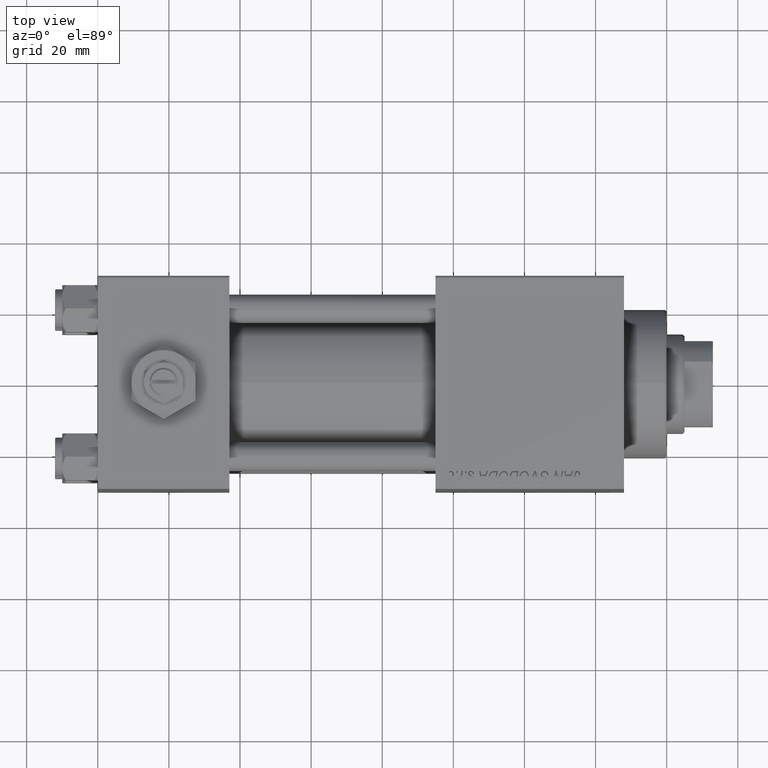
[diagram: clean part render]
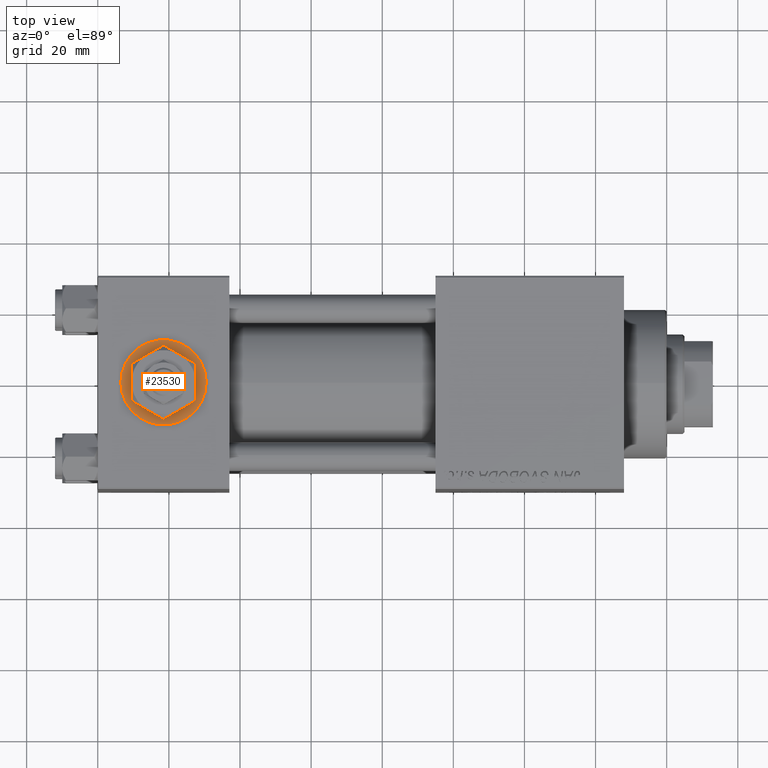
[diagram: same view with one face highlighted and labeled with its STEP entity id]
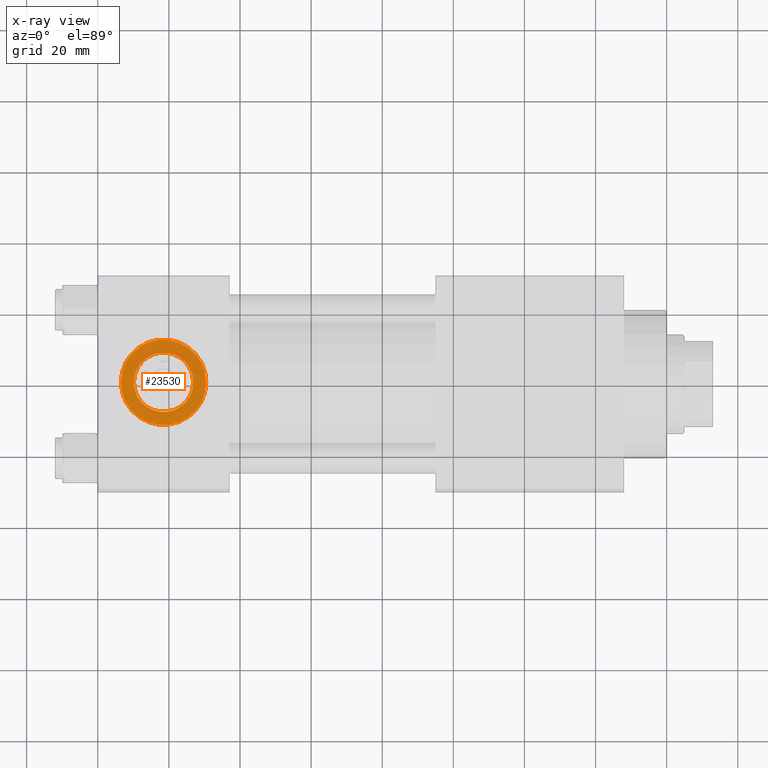
[diagram: x-ray of the same camera — body ghosted, the highlighted face saturated]
A machine part, top view. The second image highlights one B-rep face of the part: STEP entity #23530.
The next image is the same camera in x-ray: the body ghosted, the highlighted face saturated — about 0% of this face is hidden behind the body in this view.
In plain terms, the highlighted planar face has unit normal (0, 0, 1).
Its self-contained STEP definition (entity closure, byte-faithful):
#300 = AXIS2_PLACEMENT_3D ( 'NONE', #34553, #35057, #6423 ) ;
#1286 = AXIS2_PLACEMENT_3D ( 'NONE', #6867, #2130, #42346 ) ;
#2130 = DIRECTION ( 'NONE',  ( 0.000000000000000000, 0.000000000000000000, 1.000000000000000000 ) ) ;
#2662 = FACE_BOUND ( 'NONE', #21240, .T. ) ;
#2788 = VERTEX_POINT ( 'NONE', #22641 ) ;
#6423 = DIRECTION ( 'NONE',  ( 1.000000000000000000, 0.000000000000000000, 0.000000000000000000 ) ) ;
#6603 = PLANE ( 'NONE',  #1286 ) ;
#6867 = CARTESIAN_POINT ( 'NONE',  ( 18.50000000000000000, -3.469446951953614978E-15, 29.79999999999999716 ) ) ;
#8908 = CIRCLE ( 'NONE', #43321, 12.00000000000000000 ) ;
#9116 = ORIENTED_EDGE ( 'NONE', *, *, #24538, .T. ) ;
#11749 = DIRECTION ( 'NONE',  ( 0.000000000000000000, 0.000000000000000000, 1.000000000000000000 ) ) ;
#12215 = AXIS2_PLACEMENT_3D ( 'NONE', #28533, #11749, #15953 ) ;
#13311 = VERTEX_POINT ( 'NONE', #46097 ) ;
#14714 = DIRECTION ( 'NONE',  ( 1.000000000000000000, 0.000000000000000000, 0.000000000000000000 ) ) ;
#15953 = DIRECTION ( 'NONE',  ( 1.000000000000000000, 0.000000000000000000, 0.000000000000000000 ) ) ;
#18159 = EDGE_CURVE ( 'NONE', #29368, #33959, #48856, .T. ) ;
#18213 = DIRECTION ( 'NONE',  ( 0.000000000000000000, 0.000000000000000000, 1.000000000000000000 ) ) ;
#18399 = CARTESIAN_POINT ( 'NONE',  ( 18.50000000000000000, -3.469446951953614978E-15, 29.79999999999999716 ) ) ;
#20140 = EDGE_CURVE ( 'NONE', #33959, #29368, #34886, .T. ) ;
#21240 = EDGE_LOOP ( 'NONE', ( #35359, #30906 ) ) ;
#22641 = CARTESIAN_POINT ( 'NONE',  ( 6.499999999999997335, -1.999870792976790833E-15, 29.79999999999999716 ) ) ;
#22687 = DIRECTION ( 'NONE',  ( 1.000000000000000000, 0.000000000000000000, 0.000000000000000000 ) ) ;
#22883 = ORIENTED_EDGE ( 'NONE', *, *, #45925, .T. ) ;
#23530 = ADVANCED_FACE ( 'NONE', ( #2662, #42869 ), #6603, .T. ) ;
#24538 = EDGE_CURVE ( 'NONE', #2788, #13311, #8908, .T. ) ;
#26213 = AXIS2_PLACEMENT_3D ( 'NONE', #50528, #18213, #22687 ) ;
#26338 = CARTESIAN_POINT ( 'NONE',  ( 10.16999999999999638, -2.449316168263869821E-15, 29.79999999999999716 ) ) ;
#28533 = CARTESIAN_POINT ( 'NONE',  ( 18.50000000000000000, -3.469446951953614978E-15, 29.79999999999999716 ) ) ;
#29368 = VERTEX_POINT ( 'NONE', #32048 ) ;
#30906 = ORIENTED_EDGE ( 'NONE', *, *, #20140, .F. ) ;
#32048 = CARTESIAN_POINT ( 'NONE',  ( 26.82999999999999829, -3.469446951953614978E-15, 29.79999999999999716 ) ) ;
#33959 = VERTEX_POINT ( 'NONE', #26338 ) ;
#34553 = CARTESIAN_POINT ( 'NONE',  ( 18.50000000000000000, -3.469446951953614978E-15, 29.79999999999999716 ) ) ;
#34886 = CIRCLE ( 'NONE', #12215, 8.330000000000000071 ) ;
#35057 = DIRECTION ( 'NONE',  ( 0.000000000000000000, 0.000000000000000000, 1.000000000000000000 ) ) ;
#35359 = ORIENTED_EDGE ( 'NONE', *, *, #18159, .F. ) ;
#39067 = EDGE_LOOP ( 'NONE', ( #22883, #9116 ) ) ;
#42346 = DIRECTION ( 'NONE',  ( 1.000000000000000000, 0.000000000000000000, -0.000000000000000000 ) ) ;
#42869 = FACE_OUTER_BOUND ( 'NONE', #39067, .T. ) ;
#43321 = AXIS2_PLACEMENT_3D ( 'NONE', #18399, #50704, #14714 ) ;
#45925 = EDGE_CURVE ( 'NONE', #13311, #2788, #50659, .T. ) ;
#46097 = CARTESIAN_POINT ( 'NONE',  ( 30.50000000000000000, -3.469446951953614978E-15, 29.79999999999999716 ) ) ;
#48856 = CIRCLE ( 'NONE', #26213, 8.330000000000000071 ) ;
#50528 = CARTESIAN_POINT ( 'NONE',  ( 18.50000000000000000, -3.469446951953614978E-15, 29.79999999999999716 ) ) ;
#50659 = CIRCLE ( 'NONE', #300, 12.00000000000000000 ) ;
#50704 = DIRECTION ( 'NONE',  ( 0.000000000000000000, 0.000000000000000000, 1.000000000000000000 ) ) ;